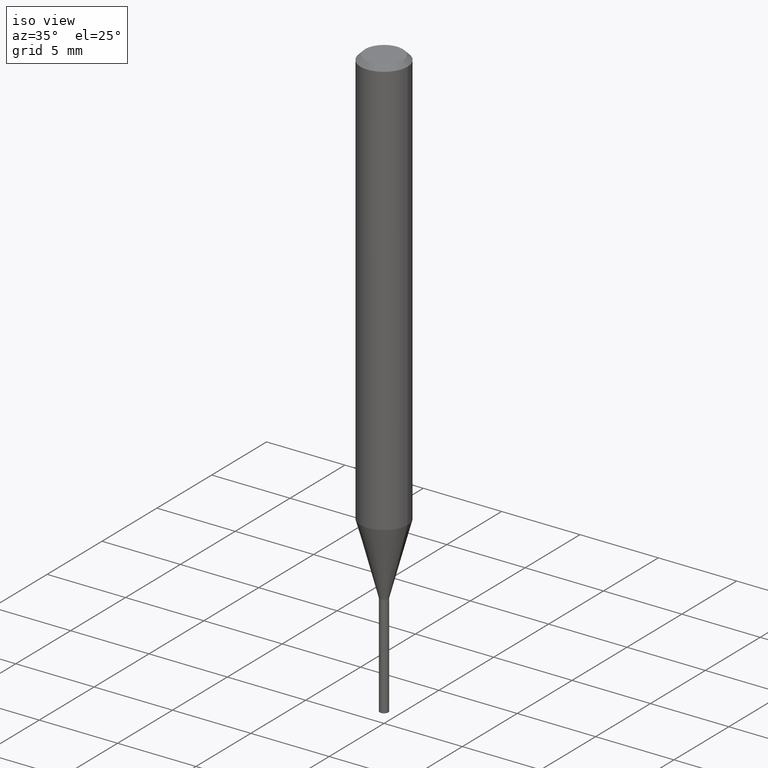
[diagram: clean part render]
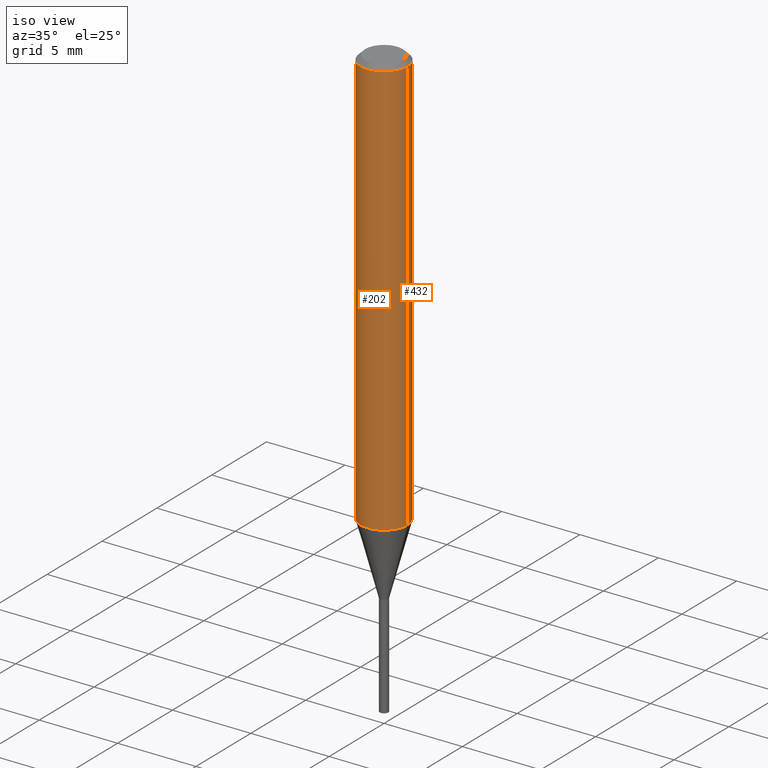
[diagram: same view with one multi-face feature highlighted, each face labeled with its STEP entity id]
A machine part, iso view. The highlighted faces form ONE feature: a constant-radius fillet chain: 2 tangent blend faces with common blend radius 1.4999 mm. The faces share edges in the B-rep.
Their STEP definitions:
[1] entity #432 (Cylinder):
#3 = AXIS2_PLACEMENT_3D ( 'NONE', #188, #300, #35 ) ;
#8 = FACE_OUTER_BOUND ( 'NONE', #371, .T. ) ;
#10 = DIRECTION ( 'NONE',  ( -2.445468806185136877E-29, 3.491481338843145188E-15, 1.000000000000000000 ) ) ;
#12 = VERTEX_POINT ( 'NONE', #235 ) ;
#29 = VERTEX_POINT ( 'NONE', #345 ) ;
#35 = DIRECTION ( 'NONE',  ( 1.000000000000000000, -6.982962677686266711E-15, 4.876176775795936353E-29 ) ) ;
#67 = CARTESIAN_POINT ( 'NONE',  ( 0.05905000000000013710, -4.087018914733182881E-15, -1.052468740913666378 ) ) ;
#75 = CARTESIAN_POINT ( 'NONE',  ( -0.05904999999999999832, -1.438379196147432366E-15, -0.01181000000000007218 ) ) ;
#101 = CARTESIAN_POINT ( 'NONE',  ( 2.573779475389317461E-29, -3.674674968615807172E-15, -1.052468740913666378 ) ) ;
#122 = VECTOR ( 'NONE', #10, 39.37007874015748143 ) ;
#157 = VECTOR ( 'NONE', #441, 39.37007874015748143 ) ;
#161 = ORIENTED_EDGE ( 'NONE', *, *, #348, .T. ) ;
#174 = AXIS2_PLACEMENT_3D ( 'NONE', #225, #404, #186 ) ;
#186 = DIRECTION ( 'NONE',  ( 1.000000000000000000, -6.982962677686266711E-15, 0.000000000000000000 ) ) ;
#187 = EDGE_CURVE ( 'NONE', #203, #29, #478, .T. ) ;
#188 = CARTESIAN_POINT ( 'NONE',  ( 0.000000000000000000, 0.000000000000000000, 0.000000000000000000 ) ) ;
#201 = LINE ( 'NONE', #346, #122 ) ;
#203 = VERTEX_POINT ( 'NONE', #67 ) ;
#225 = CARTESIAN_POINT ( 'NONE',  ( 2.888098660104664204E-31, -4.123439461173780263E-17, -0.01181000000000007218 ) ) ;
#235 = CARTESIAN_POINT ( 'NONE',  ( 0.05904999999999999832, -4.535783407291118600E-16, -0.01181000000000007218 ) ) ;
#269 = CARTESIAN_POINT ( 'NONE',  ( 0.05905000000000006771, -4.123439461173745257E-16, 2.879382386107503723E-30 ) ) ;
#298 = ORIENTED_EDGE ( 'NONE', *, *, #367, .F. ) ;
#300 = DIRECTION ( 'NONE',  ( -2.445468806185136597E-29, 3.491481338843145583E-15, 1.000000000000000000 ) ) ;
#320 = CIRCLE ( 'NONE', #174, 0.05904999999999999832 ) ;
#325 = DIRECTION ( 'NONE',  ( 1.000000000000000000, -6.982962677686264344E-15, 0.000000000000000000 ) ) ;
#333 = ORIENTED_EDGE ( 'NONE', *, *, #187, .T. ) ;
#345 = CARTESIAN_POINT ( 'NONE',  ( -0.05905000000000013710, -3.255099483149467285E-15, -1.052468740913666378 ) ) ;
#346 = CARTESIAN_POINT ( 'NONE',  ( -0.05905000000000006771, 4.195754854663396409E-16, -2.904631170795525045E-30 ) ) ;
#348 = EDGE_CURVE ( 'NONE', #29, #466, #201, .T. ) ;
#367 = EDGE_CURVE ( 'NONE', #203, #12, #444, .T. ) ;
#371 = EDGE_LOOP ( 'NONE', ( #333, #161, #450, #298 ) ) ;
#393 = DIRECTION ( 'NONE',  ( -2.445468806185136597E-29, 3.491481338843145583E-15, 1.000000000000000000 ) ) ;
#404 = DIRECTION ( 'NONE',  ( -2.445468806185136597E-29, 3.491481338843145583E-15, 1.000000000000000000 ) ) ;
#407 = CYLINDRICAL_SURFACE ( 'NONE', #3, 0.05905000000000006771 ) ;
#432 = ADVANCED_FACE ( 'NONE', ( #8 ), #407, .T. ) ;
#436 = AXIS2_PLACEMENT_3D ( 'NONE', #101, #393, #325 ) ;
#441 = DIRECTION ( 'NONE',  ( -2.445468806185136877E-29, 3.491481338843145188E-15, 1.000000000000000000 ) ) ;
#444 = LINE ( 'NONE', #269, #157 ) ;
#450 = ORIENTED_EDGE ( 'NONE', *, *, #452, .F. ) ;
#452 = EDGE_CURVE ( 'NONE', #12, #466, #320, .T. ) ;
#466 = VERTEX_POINT ( 'NONE', #75 ) ;
#478 = CIRCLE ( 'NONE', #436, 0.05905000000000013710 ) ;
[2] entity #202 (Cylinder):
#1 = AXIS2_PLACEMENT_3D ( 'NONE', #56, #165, #210 ) ;
#10 = DIRECTION ( 'NONE',  ( -2.445468806185136877E-29, 3.491481338843145188E-15, 1.000000000000000000 ) ) ;
#12 = VERTEX_POINT ( 'NONE', #235 ) ;
#15 = CARTESIAN_POINT ( 'NONE',  ( 0.000000000000000000, 0.000000000000000000, 0.000000000000000000 ) ) ;
#29 = VERTEX_POINT ( 'NONE', #345 ) ;
#30 = AXIS2_PLACEMENT_3D ( 'NONE', #424, #305, #381 ) ;
#41 = EDGE_CURVE ( 'NONE', #466, #12, #248, .T. ) ;
#56 = CARTESIAN_POINT ( 'NONE',  ( 2.888098660104664204E-31, -4.123439461173780263E-17, -0.01181000000000007218 ) ) ;
#67 = CARTESIAN_POINT ( 'NONE',  ( 0.05905000000000013710, -4.087018914733182881E-15, -1.052468740913666378 ) ) ;
#75 = CARTESIAN_POINT ( 'NONE',  ( -0.05904999999999999832, -1.438379196147432366E-15, -0.01181000000000007218 ) ) ;
#98 = AXIS2_PLACEMENT_3D ( 'NONE', #15, #255, #172 ) ;
#122 = VECTOR ( 'NONE', #10, 39.37007874015748143 ) ;
#123 = ORIENTED_EDGE ( 'NONE', *, *, #364, .T. ) ;
#157 = VECTOR ( 'NONE', #441, 39.37007874015748143 ) ;
#165 = DIRECTION ( 'NONE',  ( -2.445468806185136597E-29, 3.491481338843145583E-15, 1.000000000000000000 ) ) ;
#171 = ORIENTED_EDGE ( 'NONE', *, *, #348, .F. ) ;
#172 = DIRECTION ( 'NONE',  ( 1.000000000000000000, -6.982962677686266711E-15, 4.876176775795936353E-29 ) ) ;
#201 = LINE ( 'NONE', #346, #122 ) ;
#202 = ADVANCED_FACE ( 'NONE', ( #291 ), #247, .T. ) ;
#203 = VERTEX_POINT ( 'NONE', #67 ) ;
#210 = DIRECTION ( 'NONE',  ( 1.000000000000000000, -6.982962677686266711E-15, 0.000000000000000000 ) ) ;
#235 = CARTESIAN_POINT ( 'NONE',  ( 0.05904999999999999832, -4.535783407291118600E-16, -0.01181000000000007218 ) ) ;
#247 = CYLINDRICAL_SURFACE ( 'NONE', #98, 0.05905000000000006771 ) ;
#248 = CIRCLE ( 'NONE', #1, 0.05904999999999999832 ) ;
#255 = DIRECTION ( 'NONE',  ( -2.445468806185136597E-29, 3.491481338843145583E-15, 1.000000000000000000 ) ) ;
#269 = CARTESIAN_POINT ( 'NONE',  ( 0.05905000000000006771, -4.123439461173745257E-16, 2.879382386107503723E-30 ) ) ;
#291 = FACE_OUTER_BOUND ( 'NONE', #454, .T. ) ;
#305 = DIRECTION ( 'NONE',  ( -2.445468806185136597E-29, 3.491481338843145583E-15, 1.000000000000000000 ) ) ;
#345 = CARTESIAN_POINT ( 'NONE',  ( -0.05905000000000013710, -3.255099483149467285E-15, -1.052468740913666378 ) ) ;
#346 = CARTESIAN_POINT ( 'NONE',  ( -0.05905000000000006771, 4.195754854663396409E-16, -2.904631170795525045E-30 ) ) ;
#348 = EDGE_CURVE ( 'NONE', #29, #466, #201, .T. ) ;
#364 = EDGE_CURVE ( 'NONE', #29, #203, #469, .T. ) ;
#367 = EDGE_CURVE ( 'NONE', #203, #12, #444, .T. ) ;
#381 = DIRECTION ( 'NONE',  ( 1.000000000000000000, -6.982962677686264344E-15, 0.000000000000000000 ) ) ;
#391 = ORIENTED_EDGE ( 'NONE', *, *, #367, .T. ) ;
#410 = ORIENTED_EDGE ( 'NONE', *, *, #41, .F. ) ;
#424 = CARTESIAN_POINT ( 'NONE',  ( 2.573779475389317461E-29, -3.674674968615807172E-15, -1.052468740913666378 ) ) ;
#441 = DIRECTION ( 'NONE',  ( -2.445468806185136877E-29, 3.491481338843145188E-15, 1.000000000000000000 ) ) ;
#444 = LINE ( 'NONE', #269, #157 ) ;
#454 = EDGE_LOOP ( 'NONE', ( #171, #123, #391, #410 ) ) ;
#466 = VERTEX_POINT ( 'NONE', #75 ) ;
#469 = CIRCLE ( 'NONE', #30, 0.05905000000000013710 ) ;